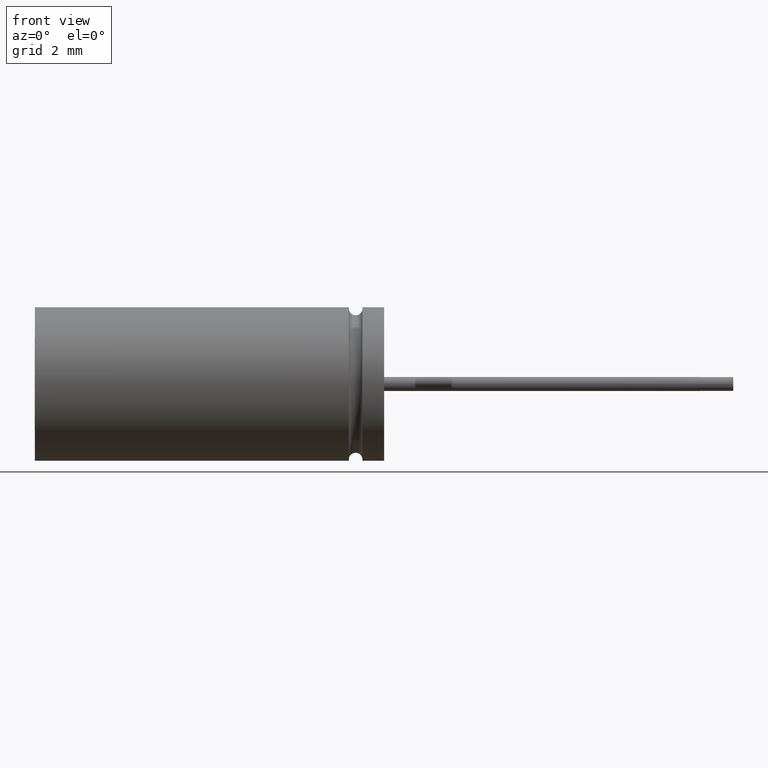
[diagram: clean part render]
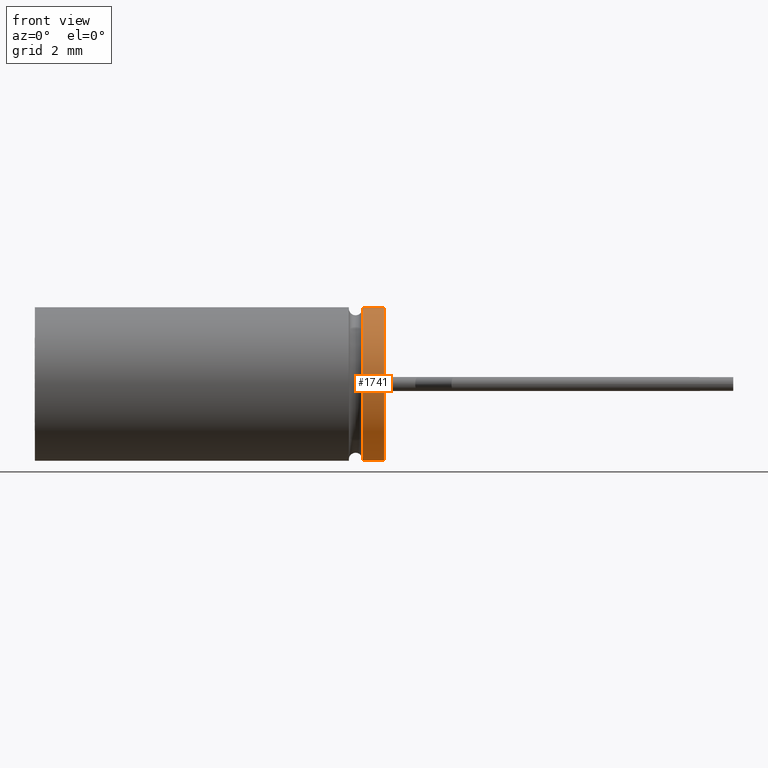
[diagram: same view with one face highlighted and labeled with its STEP entity id]
A machine part, front view. The second image highlights one B-rep face of the part: STEP entity #1741.
In plain terms, the highlighted cylindrical surface (partial cylindrical patch) has radius 2.75 mm, axis along (-1, -0, -0).
Its self-contained STEP definition (entity closure, byte-faithful):
#23 = CARTESIAN_POINT ( 'NONE',  ( 12.50000000000000000, 0.0000000000000000000, 0.0000000000000000000 ) ) ;
#197 = CIRCLE ( 'NONE', #2050, 2.750000000000000000 ) ;
#231 = EDGE_CURVE ( 'NONE', #2403, #2471, #2596, .T. ) ;
#531 = VERTEX_POINT ( 'NONE', #1262 ) ;
#537 = ORIENTED_EDGE ( 'NONE', *, *, #3496, .F. ) ;
#545 = AXIS2_PLACEMENT_3D ( 'NONE', #1363, #3346, #1341 ) ;
#582 = CARTESIAN_POINT ( 'NONE',  ( 12.50000000000000000, 0.0000000000000000000, 2.750000000000000000 ) ) ;
#691 = VECTOR ( 'NONE', #1519, 1000.000000000000000 ) ;
#701 = VERTEX_POINT ( 'NONE', #1620 ) ;
#709 = FACE_OUTER_BOUND ( 'NONE', #3458, .T. ) ;
#800 = CYLINDRICAL_SURFACE ( 'NONE', #1328, 2.750000000000000000 ) ;
#848 = CARTESIAN_POINT ( 'NONE',  ( 12.50000000000000000, 0.0000000000000000000, 0.0000000000000000000 ) ) ;
#875 = DIRECTION ( 'NONE',  ( 0.0000000000000000000, 0.0000000000000000000, 1.000000000000000000 ) ) ;
#1007 = CIRCLE ( 'NONE', #545, 2.750000000000000000 ) ;
#1262 = CARTESIAN_POINT ( 'NONE',  ( 11.72395000000000000, 3.367778697655221000E-016, -2.750000000000000000 ) ) ;
#1328 = AXIS2_PLACEMENT_3D ( 'NONE', #848, #2570, #875 ) ;
#1341 = DIRECTION ( 'NONE',  ( 0.0000000000000000000, 0.0000000000000000000, -1.000000000000000000 ) ) ;
#1363 = CARTESIAN_POINT ( 'NONE',  ( 11.72395000000000000, 0.0000000000000000000, 0.0000000000000000000 ) ) ;
#1419 = EDGE_CURVE ( 'NONE', #2403, #701, #197, .T. ) ;
#1519 = DIRECTION ( 'NONE',  ( -1.000000000000000000, -0.0000000000000000000, -0.0000000000000000000 ) ) ;
#1620 = CARTESIAN_POINT ( 'NONE',  ( 12.50000000000000000, 3.367778697655221000E-016, -2.750000000000000000 ) ) ;
#1660 = ORIENTED_EDGE ( 'NONE', *, *, #231, .T. ) ;
#1741 = ADVANCED_FACE ( 'NONE', ( #709 ), #800, .T. ) ;
#1747 = CARTESIAN_POINT ( 'NONE',  ( 12.50000000000000000, 3.367778697655221000E-016, -2.750000000000000000 ) ) ;
#1883 = ORIENTED_EDGE ( 'NONE', *, *, #2735, .T. ) ;
#1952 = DIRECTION ( 'NONE',  ( -1.000000000000000000, -0.0000000000000000000, -0.0000000000000000000 ) ) ;
#1970 = DIRECTION ( 'NONE',  ( 0.0000000000000000000, 0.0000000000000000000, -1.000000000000000000 ) ) ;
#2050 = AXIS2_PLACEMENT_3D ( 'NONE', #23, #2283, #1970 ) ;
#2283 = DIRECTION ( 'NONE',  ( 1.000000000000000000, 0.0000000000000000000, 0.0000000000000000000 ) ) ;
#2388 = ORIENTED_EDGE ( 'NONE', *, *, #1419, .F. ) ;
#2403 = VERTEX_POINT ( 'NONE', #582 ) ;
#2471 = VERTEX_POINT ( 'NONE', #3532 ) ;
#2570 = DIRECTION ( 'NONE',  ( -1.000000000000000000, -0.0000000000000000000, -0.0000000000000000000 ) ) ;
#2596 = LINE ( 'NONE', #3212, #691 ) ;
#2709 = VECTOR ( 'NONE', #1952, 1000.000000000000000 ) ;
#2735 = EDGE_CURVE ( 'NONE', #2471, #531, #1007, .T. ) ;
#3212 = CARTESIAN_POINT ( 'NONE',  ( 12.50000000000000000, 0.0000000000000000000, 2.750000000000000000 ) ) ;
#3346 = DIRECTION ( 'NONE',  ( 1.000000000000000000, -0.0000000000000000000, -0.0000000000000000000 ) ) ;
#3458 = EDGE_LOOP ( 'NONE', ( #537, #2388, #1660, #1883 ) ) ;
#3459 = LINE ( 'NONE', #1747, #2709 ) ;
#3496 = EDGE_CURVE ( 'NONE', #701, #531, #3459, .T. ) ;
#3532 = CARTESIAN_POINT ( 'NONE',  ( 11.72395000000000000, 0.0000000000000000000, 2.750000000000000000 ) ) ;